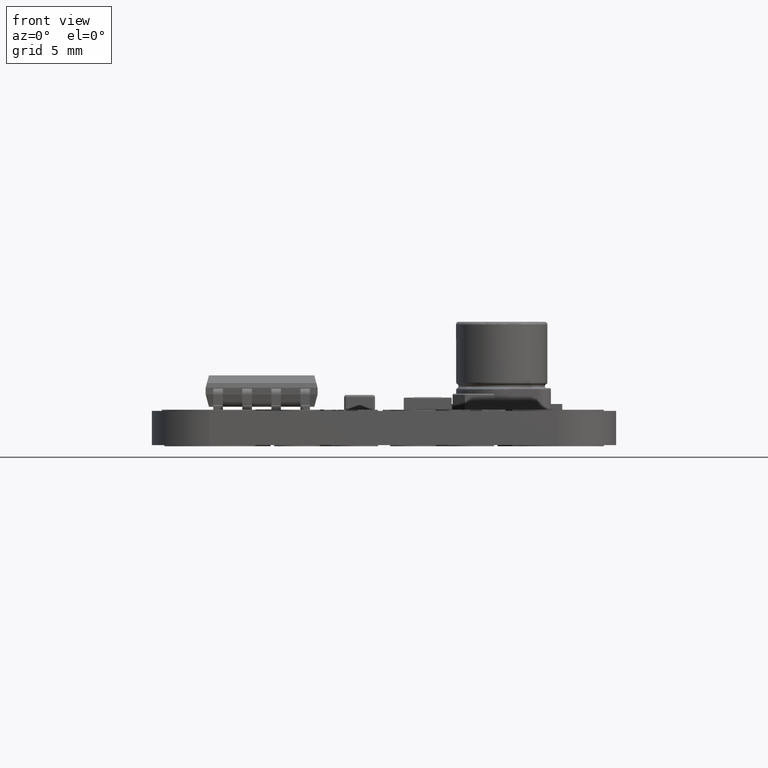
[diagram: clean part render]
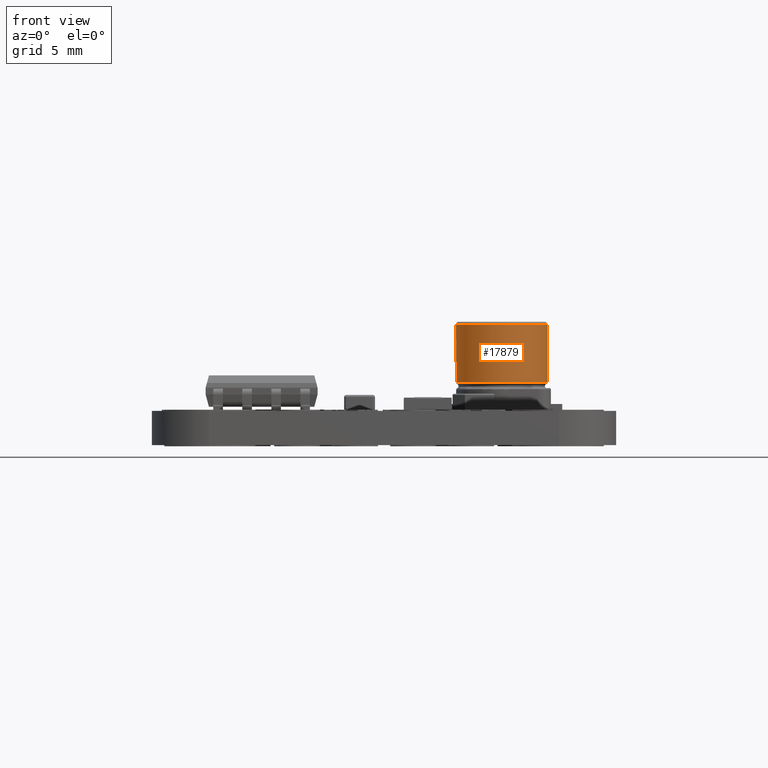
[diagram: same view with one face highlighted and labeled with its STEP entity id]
A machine part, front view. The second image highlights one B-rep face of the part: STEP entity #17879.
In plain terms, the highlighted cylindrical surface (bore or boss wall) has radius 2 mm, axis along (0, 0, -1).
Its self-contained STEP definition (entity closure, byte-faithful):
#253=CYLINDRICAL_SURFACE('',#18892,2.);
#506=CIRCLE('',#18880,2.);
#512=CIRCLE('',#18890,2.00000000000999);
#513=CIRCLE('',#18891,2.00000000000999);
#514=CIRCLE('',#18893,2.);
#515=CIRCLE('',#18894,2.);
#2040=FACE_OUTER_BOUND('',#3100,.T.);
#3100=EDGE_LOOP('',(#15854,#15855,#15856,#15857,#15858,#15859,#15860));
#4638=LINE('',#31048,#6183);
#6183=VECTOR('',#22271,2.);
#8455=VERTEX_POINT('',#31025);
#8456=VERTEX_POINT('',#31027);
#8460=VERTEX_POINT('',#31041);
#8461=VERTEX_POINT('',#31043);
#8462=VERTEX_POINT('',#31047);
#10920=EDGE_CURVE('',#8456,#8455,#506,.T.);
#10928=EDGE_CURVE('',#8460,#8461,#512,.T.);
#10929=EDGE_CURVE('',#8461,#8460,#513,.T.);
#10930=EDGE_CURVE('',#8461,#8462,#4638,.T.);
#10931=EDGE_CURVE('',#8462,#8456,#514,.T.);
#10932=EDGE_CURVE('',#8455,#8462,#515,.T.);
#15854=ORIENTED_EDGE('',*,*,#10929,.F.);
#15855=ORIENTED_EDGE('',*,*,#10930,.T.);
#15856=ORIENTED_EDGE('',*,*,#10931,.T.);
#15857=ORIENTED_EDGE('',*,*,#10920,.T.);
#15858=ORIENTED_EDGE('',*,*,#10932,.T.);
#15859=ORIENTED_EDGE('',*,*,#10930,.F.);
#15860=ORIENTED_EDGE('',*,*,#10928,.F.);
#17879=ADVANCED_FACE('',(#2040),#253,.T.);
#18880=AXIS2_PLACEMENT_3D('',#31028,#22244,#22245);
#18890=AXIS2_PLACEMENT_3D('',#31044,#22265,#22266);
#18891=AXIS2_PLACEMENT_3D('',#31045,#22267,#22268);
#18892=AXIS2_PLACEMENT_3D('',#31046,#22269,#22270);
#18893=AXIS2_PLACEMENT_3D('',#31049,#22272,#22273);
#18894=AXIS2_PLACEMENT_3D('',#31050,#22274,#22275);
#22244=DIRECTION('center_axis',(0.,-1.,0.));
#22245=DIRECTION('ref_axis',(1.,0.,0.));
#22265=DIRECTION('center_axis',(0.,-1.,0.));
#22266=DIRECTION('ref_axis',(0.,0.,-1.));
#22267=DIRECTION('center_axis',(0.,-1.,0.));
#22268=DIRECTION('ref_axis',(0.,0.,-1.));
#22269=DIRECTION('center_axis',(0.,-1.,0.));
#22270=DIRECTION('ref_axis',(1.,0.,0.));
#22271=DIRECTION('',(0.,1.,0.));
#22272=DIRECTION('center_axis',(0.,-1.,0.));
#22273=DIRECTION('ref_axis',(1.,0.,0.));
#22274=DIRECTION('center_axis',(0.,-1.,0.));
#22275=DIRECTION('ref_axis',(1.,0.,0.));
#31025=CARTESIAN_POINT('',(-0.666666666666666,3.775,1.88561808316413));
#31027=CARTESIAN_POINT('',(-0.666666666666666,3.775,-1.88561808316413));
#31028=CARTESIAN_POINT('Origin',(1.734848E-18,3.775,0.));
#31041=CARTESIAN_POINT('',(-2.44929359830695E-16,1.25,2.00000000000999));
#31043=CARTESIAN_POINT('',(-2.,1.25,-2.44929359829471E-16));
#31044=CARTESIAN_POINT('Origin',(0.,1.25,0.));
#31045=CARTESIAN_POINT('Origin',(0.,1.25,0.));
#31046=CARTESIAN_POINT('Origin',(4.718788E-17,0.500000000048987,0.));
#31047=CARTESIAN_POINT('',(-2.,3.775,-2.44929359829471E-16));
#31048=CARTESIAN_POINT('',(-2.,0.500000000048987,-2.44929359829471E-16));
#31049=CARTESIAN_POINT('Origin',(1.734848E-18,3.775,0.));
#31050=CARTESIAN_POINT('Origin',(1.734848E-18,3.775,0.));